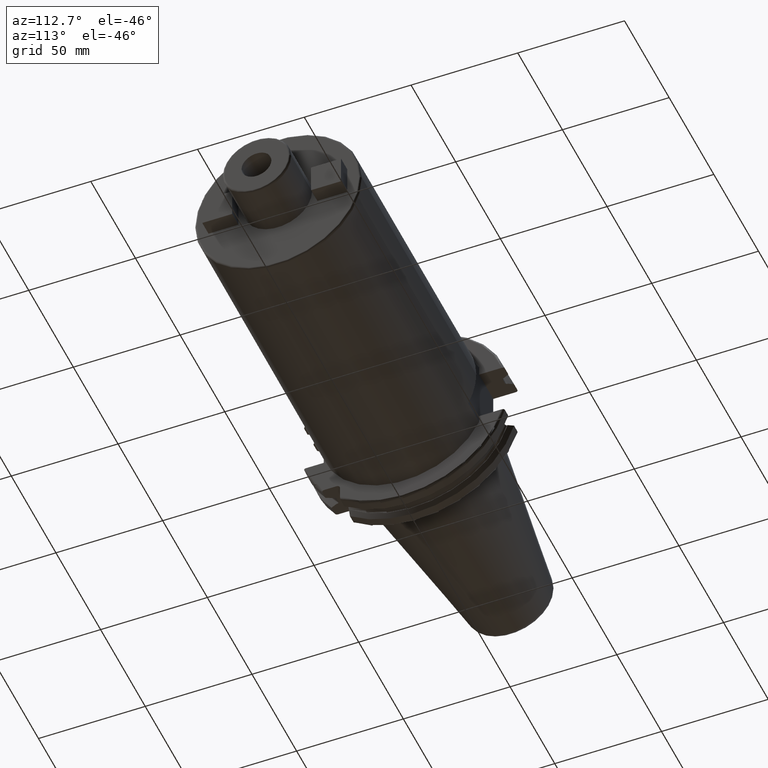
[diagram: clean part render]
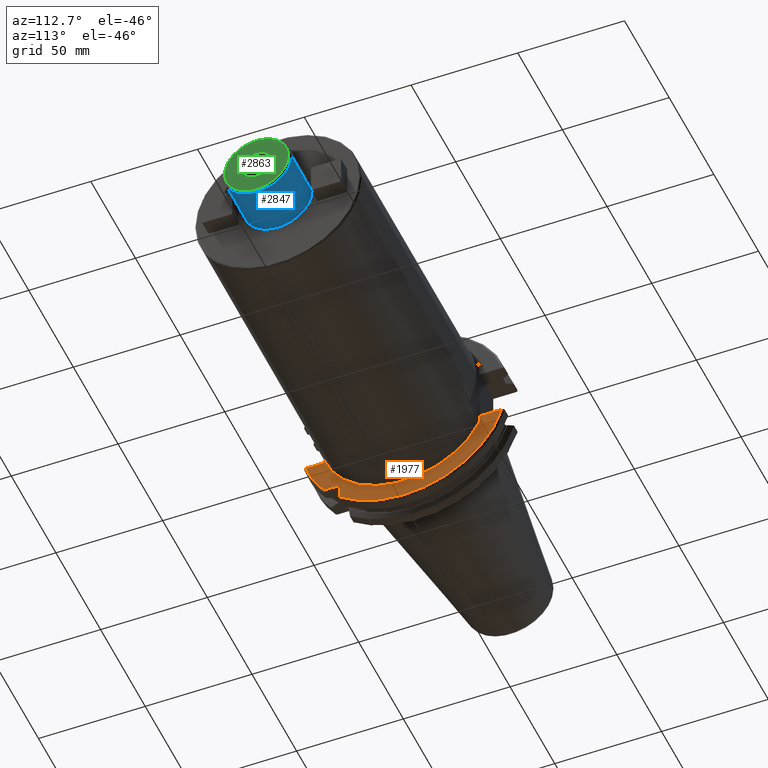
[diagram: same view with three faces highlighted in distinct colors, each labeled with its STEP entity id]
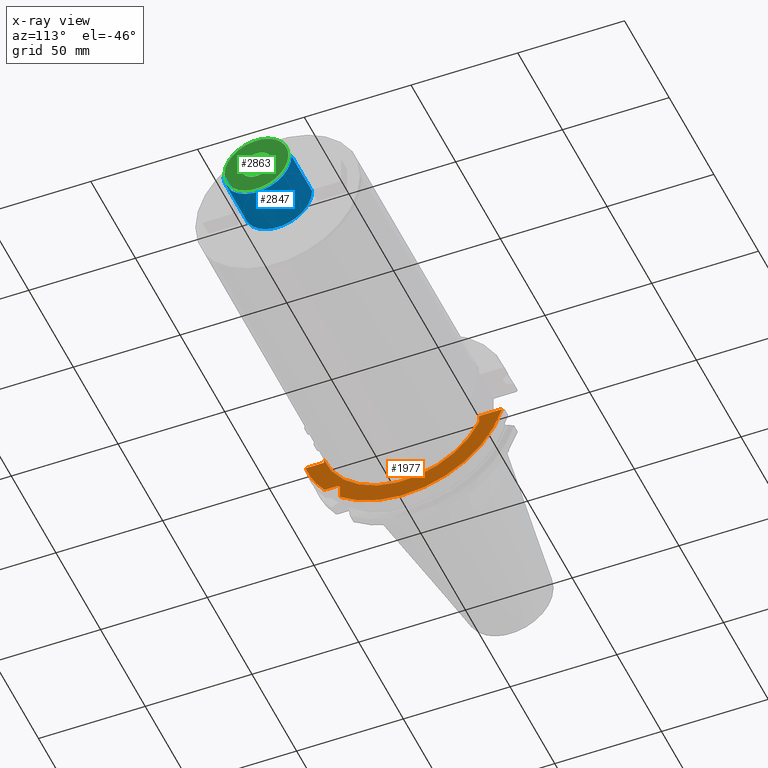
[diagram: x-ray of the same camera — body ghosted, the three highlighted faces saturated]
A machine part, auxiliary view with three faces highlighted in distinct colors.
The next image is the same camera in x-ray (body ghosted, the three faces saturated) — at least one of them is partly hidden behind the body in this view.
Their STEP definitions:

[orange] entity #1977 — the highlighted planar face has unit normal (1, 0, 0).
#122=DIRECTION('',(0.E0,0.E0,1.E0));
#123=VECTOR('',#122,3.680410127617E0);
#124=CARTESIAN_POINT('',(1.905E1,3.53E1,-1.658041012762E1));
#125=LINE('',#124,#123);
#150=DIRECTION('',(0.E0,0.E0,1.E0));
#151=VECTOR('',#150,2.187857357186E0);
#152=CARTESIAN_POINT('',(1.905E1,-3.75E1,-1.29E1));
#153=LINE('',#152,#151);
#154=CARTESIAN_POINT('',(1.905E1,0.E0,0.E0));
#155=DIRECTION('',(1.E0,0.E0,0.E0));
#156=DIRECTION('',(0.E0,-9.615384615385E-1,-2.746703241747E-1));
#157=AXIS2_PLACEMENT_3D('',#154,#155,#156);
#159=DIRECTION('',(0.E0,1.E0,0.E0));
#160=VECTOR('',#159,1.066149373389E1);
#161=CARTESIAN_POINT('',(1.905E1,3.53E1,-1.29E1));
#162=LINE('',#161,#160);
#163=DIRECTION('',(0.E0,0.E0,1.E0));
#164=VECTOR('',#163,5.653810627237E0);
#165=CARTESIAN_POINT('',(1.905E1,-2.985E1,-3.725381062724E1));
#166=LINE('',#165,#164);
#167=DIRECTION('',(0.E0,-1.E0,0.E0));
#168=VECTOR('',#167,5.653810627237E0);
#169=CARTESIAN_POINT('',(1.905E1,-3.16E1,-2.985E1));
#170=LINE('',#169,#168);
#171=DIRECTION('',(0.E0,1.E0,0.E0));
#172=VECTOR('',#171,8.461493733886E0);
#173=CARTESIAN_POINT('',(1.905E1,-4.596149373389E1,-1.29E1));
#174=LINE('',#173,#172);
#291=CARTESIAN_POINT('',(1.905E1,-3.16E1,-3.16E1));
#292=DIRECTION('',(-1.E0,0.E0,0.E0));
#293=DIRECTION('',(0.E0,0.E0,1.E0));
#294=AXIS2_PLACEMENT_3D('',#291,#292,#293);
#314=CARTESIAN_POINT('',(1.905E1,4.596149373389E1,-1.29E1));
#326=CARTESIAN_POINT('',(1.905E1,0.E0,0.E0));
#327=DIRECTION('',(-1.E0,0.E0,0.E0));
#328=DIRECTION('',(0.E0,9.627964123359E-1,-2.702278083268E-1));
#329=AXIS2_PLACEMENT_3D('',#326,#327,#328);
#342=CARTESIAN_POINT('',(1.905E1,0.E0,0.E0));
#343=DIRECTION('',(-1.E0,0.E0,0.E0));
#344=DIRECTION('',(0.E0,-7.803888060170E-1,-6.252945797329E-1));
#345=AXIS2_PLACEMENT_3D('',#342,#343,#344);
#356=CARTESIAN_POINT('',(1.905E1,-3.725381062724E1,-2.985E1));
#1534=CARTESIAN_POINT('',(1.905E1,-4.596149373389E1,-1.29E1));
#1535=CARTESIAN_POINT('',(1.905E1,-3.75E1,-1.29E1));
#1536=VERTEX_POINT('',#1534);
#1537=VERTEX_POINT('',#1535);
#1577=VERTEX_POINT('',#314);
#1594=CARTESIAN_POINT('',(1.905E1,-2.985E1,-3.725381062724E1));
#1595=VERTEX_POINT('',#1594);
#1602=CARTESIAN_POINT('',(1.905E1,-3.16E1,-2.985E1));
#1603=CARTESIAN_POINT('',(1.905E1,-2.985E1,-3.16E1));
#1604=VERTEX_POINT('',#1602);
#1605=VERTEX_POINT('',#1603);
#1627=VERTEX_POINT('',#356);
#1697=CARTESIAN_POINT('',(1.905E1,3.53E1,-1.658041012762E1));
#1699=VERTEX_POINT('',#1697);
#1704=CARTESIAN_POINT('',(1.905E1,3.53E1,-1.29E1));
#1705=VERTEX_POINT('',#1704);
#1712=CARTESIAN_POINT('',(1.905E1,-3.75E1,-1.071214264281E1));
#1714=VERTEX_POINT('',#1712);
#1952=CARTESIAN_POINT('',(1.905E1,0.E0,0.E0));
#1953=DIRECTION('',(1.E0,0.E0,0.E0));
#1954=DIRECTION('',(0.E0,-1.E0,0.E0));
#1955=AXIS2_PLACEMENT_3D('',#1952,#1953,#1954);
#1956=PLANE('',#1955);
#1958=ORIENTED_EDGE('',*,*,#1957,.T.);
#1960=ORIENTED_EDGE('',*,*,#1959,.T.);
#1961=ORIENTED_EDGE('',*,*,#1874,.T.);
#1962=ORIENTED_EDGE('',*,*,#1903,.T.);
#1964=ORIENTED_EDGE('',*,*,#1963,.T.);
#1966=ORIENTED_EDGE('',*,*,#1965,.T.);
#1968=ORIENTED_EDGE('',*,*,#1967,.F.);
#1970=ORIENTED_EDGE('',*,*,#1969,.T.);
#1972=ORIENTED_EDGE('',*,*,#1971,.T.);
#1974=ORIENTED_EDGE('',*,*,#1973,.T.);
#1975=EDGE_LOOP('',(#1958,#1960,#1961,#1962,#1964,#1966,#1968,#1970,#1972,
#1974));
#1976=FACE_OUTER_BOUND('',#1975,.F.);
#1977=ADVANCED_FACE('',(#1976),#1956,.T.);
#158=CIRCLE('',#157,3.9E1);
#295=CIRCLE('',#294,1.75E0);
#330=CIRCLE('',#329,4.77375E1);
#346=CIRCLE('',#345,4.77375E1);
#1874=EDGE_CURVE('',#1699,#1705,#125,.T.);
#1903=EDGE_CURVE('',#1705,#1577,#162,.T.);
#1957=EDGE_CURVE('',#1537,#1714,#153,.T.);
#1959=EDGE_CURVE('',#1714,#1699,#158,.T.);
#1963=EDGE_CURVE('',#1577,#1595,#330,.T.);
#1965=EDGE_CURVE('',#1595,#1605,#166,.T.);
#1967=EDGE_CURVE('',#1604,#1605,#295,.T.);
#1969=EDGE_CURVE('',#1604,#1627,#170,.T.);
#1971=EDGE_CURVE('',#1627,#1536,#346,.T.);
#1973=EDGE_CURVE('',#1536,#1537,#174,.T.);

[blue] entity #2847 — the highlighted cylindrical surface (partial cylindrical patch) has radius 16 mm, axis along (1, 0, 0).
#1021=CARTESIAN_POINT('',(1.6E2,0.E0,0.E0));
#1022=DIRECTION('',(-1.E0,0.E0,0.E0));
#1023=DIRECTION('',(0.E0,1.E0,0.E0));
#1024=AXIS2_PLACEMENT_3D('',#1021,#1022,#1023);
#1083=CARTESIAN_POINT('',(1.83E2,0.E0,0.E0));
#1084=DIRECTION('',(-1.E0,0.E0,0.E0));
#1085=DIRECTION('',(0.E0,1.E0,0.E0));
#1086=AXIS2_PLACEMENT_3D('',#1083,#1084,#1085);
#1088=DIRECTION('',(-1.E0,0.E0,1.043941696537E-13));
#1089=VECTOR('',#1088,2.3E1);
#1090=CARTESIAN_POINT('',(1.83E2,1.6E1,-2.399759612116E-12));
#1091=LINE('',#1090,#1089);
#1092=DIRECTION('',(-1.E0,0.E0,-1.043728714485E-13));
#1093=VECTOR('',#1092,2.3E1);
#1094=CARTESIAN_POINT('',(1.83E2,-1.6E1,2.399269753397E-12));
#1095=LINE('',#1094,#1093);
#1629=CARTESIAN_POINT('',(1.6E2,1.6E1,0.E0));
#1630=CARTESIAN_POINT('',(1.6E2,-1.6E1,0.E0));
#1631=VERTEX_POINT('',#1629);
#1632=VERTEX_POINT('',#1630);
#1651=CARTESIAN_POINT('',(1.83E2,1.6E1,0.E0));
#1652=CARTESIAN_POINT('',(1.83E2,-1.6E1,0.E0));
#1653=VERTEX_POINT('',#1651);
#1654=VERTEX_POINT('',#1652);
#2836=CARTESIAN_POINT('',(1.08025E1,0.E0,0.E0));
#2837=DIRECTION('',(1.E0,0.E0,0.E0));
#2838=DIRECTION('',(0.E0,-1.E0,0.E0));
#2839=AXIS2_PLACEMENT_3D('',#2836,#2837,#2838);
#2840=CYLINDRICAL_SURFACE('',#2839,1.6E1);
#2841=ORIENTED_EDGE('',*,*,#2827,.F.);
#2842=ORIENTED_EDGE('',*,*,#2802,.T.);
#2843=ORIENTED_EDGE('',*,*,#2767,.T.);
#2844=ORIENTED_EDGE('',*,*,#2799,.F.);
#2845=EDGE_LOOP('',(#2841,#2842,#2843,#2844));
#2846=FACE_OUTER_BOUND('',#2845,.F.);
#2847=ADVANCED_FACE('',(#2846),#2840,.T.);
#1025=CIRCLE('',#1024,1.6E1);
#1087=CIRCLE('',#1086,1.6E1);
#2767=EDGE_CURVE('',#1631,#1632,#1025,.T.);
#2799=EDGE_CURVE('',#1654,#1632,#1095,.T.);
#2802=EDGE_CURVE('',#1653,#1631,#1091,.T.);
#2827=EDGE_CURVE('',#1653,#1654,#1087,.T.);

[green] entity #2863 — the highlighted planar face has unit normal (1, 0, 0).
#1096=CARTESIAN_POINT('',(1.84E2,0.E0,0.E0));
#1097=DIRECTION('',(-1.E0,0.E0,0.E0));
#1098=DIRECTION('',(0.E0,1.E0,0.E0));
#1099=AXIS2_PLACEMENT_3D('',#1096,#1097,#1098);
#1101=CARTESIAN_POINT('',(1.84E2,0.E0,0.E0));
#1102=DIRECTION('',(-1.E0,0.E0,0.E0));
#1103=DIRECTION('',(0.E0,-1.E0,0.E0));
#1104=AXIS2_PLACEMENT_3D('',#1101,#1102,#1103);
#1106=CARTESIAN_POINT('',(1.84E2,0.E0,0.E0));
#1107=DIRECTION('',(1.E0,0.E0,0.E0));
#1108=DIRECTION('',(0.E0,-1.E0,0.E0));
#1109=AXIS2_PLACEMENT_3D('',#1106,#1107,#1108);
#1111=CARTESIAN_POINT('',(1.84E2,0.E0,0.E0));
#1112=DIRECTION('',(1.E0,0.E0,0.E0));
#1113=DIRECTION('',(0.E0,1.E0,0.E0));
#1114=AXIS2_PLACEMENT_3D('',#1111,#1112,#1113);
#1647=CARTESIAN_POINT('',(1.84E2,-7.E0,0.E0));
#1648=CARTESIAN_POINT('',(1.84E2,7.E0,0.E0));
#1649=VERTEX_POINT('',#1647);
#1650=VERTEX_POINT('',#1648);
#1655=CARTESIAN_POINT('',(1.84E2,1.5E1,0.E0));
#1656=CARTESIAN_POINT('',(1.84E2,-1.5E1,0.E0));
#1657=VERTEX_POINT('',#1655);
#1658=VERTEX_POINT('',#1656);
#2848=CARTESIAN_POINT('',(1.84E2,0.E0,0.E0));
#2849=DIRECTION('',(1.E0,0.E0,0.E0));
#2850=DIRECTION('',(0.E0,-1.E0,0.E0));
#2851=AXIS2_PLACEMENT_3D('',#2848,#2849,#2850);
#2852=PLANE('',#2851);
#2853=ORIENTED_EDGE('',*,*,#2830,.T.);
#2854=ORIENTED_EDGE('',*,*,#2815,.T.);
#2855=EDGE_LOOP('',(#2853,#2854));
#2856=FACE_OUTER_BOUND('',#2855,.F.);
#2858=ORIENTED_EDGE('',*,*,#2857,.T.);
#2860=ORIENTED_EDGE('',*,*,#2859,.T.);
#2861=EDGE_LOOP('',(#2858,#2860));
#2862=FACE_BOUND('',#2861,.F.);
#2863=ADVANCED_FACE('',(#2856,#2862),#2852,.T.);
#1100=CIRCLE('',#1099,1.5E1);
#1105=CIRCLE('',#1104,1.5E1);
#1110=CIRCLE('',#1109,7.E0);
#1115=CIRCLE('',#1114,7.E0);
#2815=EDGE_CURVE('',#1658,#1657,#1105,.T.);
#2830=EDGE_CURVE('',#1657,#1658,#1100,.T.);
#2857=EDGE_CURVE('',#1649,#1650,#1110,.T.);
#2859=EDGE_CURVE('',#1650,#1649,#1115,.T.);